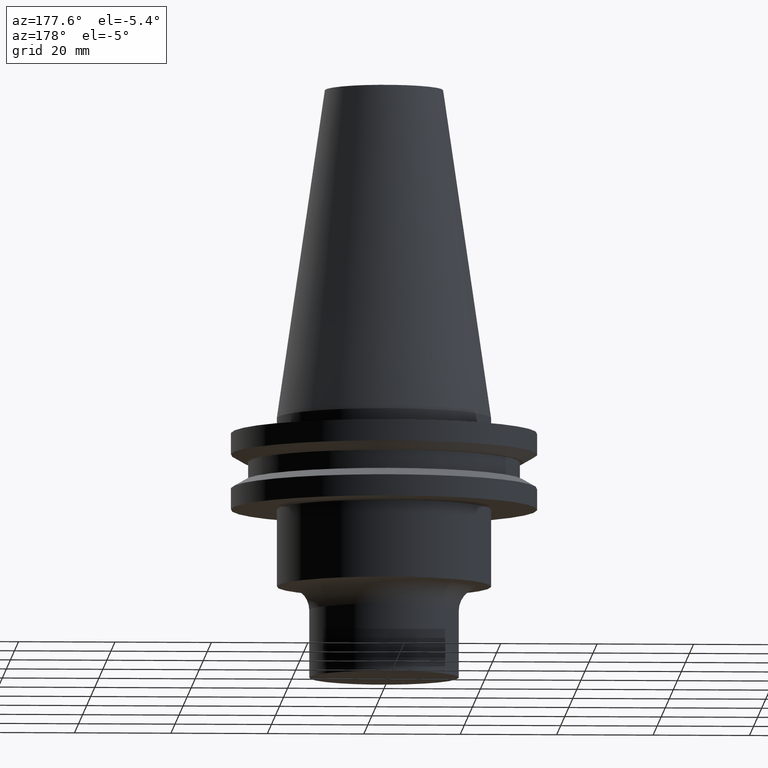
[diagram: clean part render]
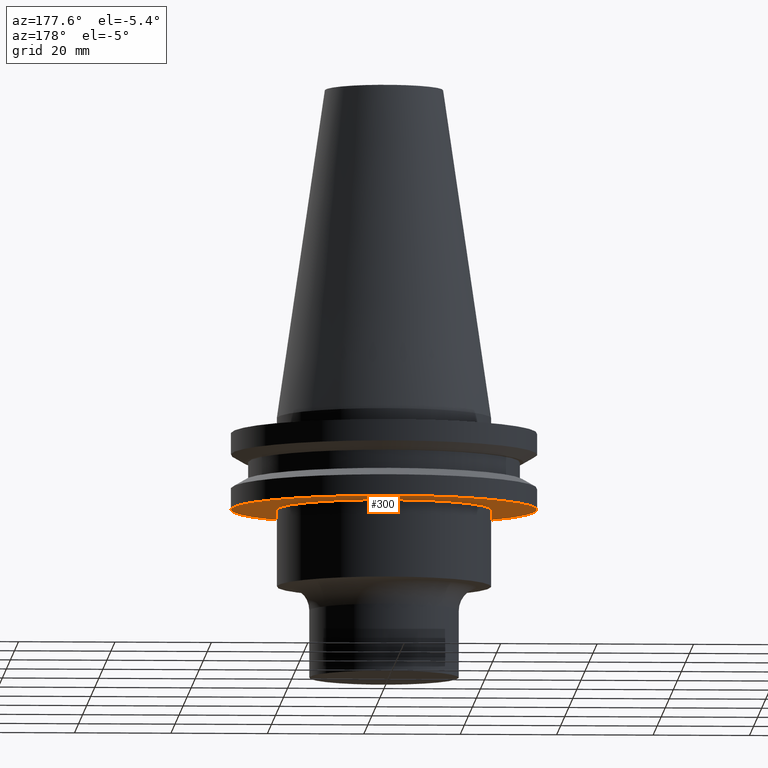
[diagram: same view with one face highlighted and labeled with its STEP entity id]
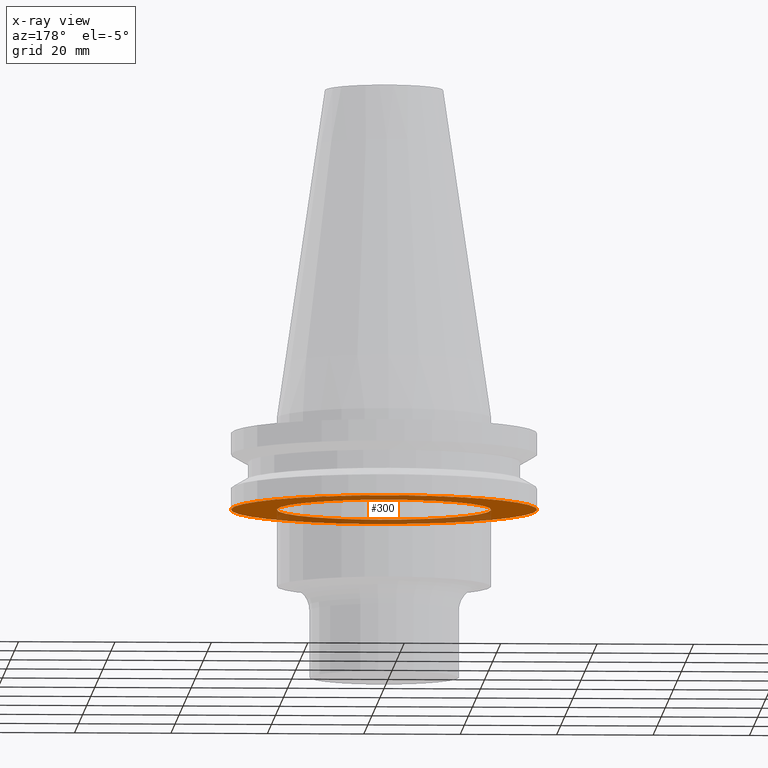
[diagram: x-ray of the same camera — body ghosted, the highlighted face saturated]
A machine part, auxiliary view. The second image highlights one B-rep face of the part: STEP entity #300.
The next image is the same camera in x-ray: the body ghosted, the highlighted face saturated — about 31% of this face is hidden behind the body in this view.
In plain terms, the highlighted planar face has unit normal (0, -0, 1).
Its self-contained STEP definition (entity closure, byte-faithful):
#4 = VERTEX_POINT ( 'NONE', #196 ) ;
#16 = AXIS2_PLACEMENT_3D ( 'NONE', #524, #252, #309 ) ;
#24 = EDGE_CURVE ( 'NONE', #658, #106, #265, .T. ) ;
#47 = CARTESIAN_POINT ( 'NONE',  ( 22.22500000000000142, 0.000000000000000000, -19.04999999999999716 ) ) ;
#58 = VERTEX_POINT ( 'NONE', #699 ) ;
#106 = VERTEX_POINT ( 'NONE', #279 ) ;
#111 = EDGE_LOOP ( 'NONE', ( #410, #475 ) ) ;
#184 = PLANE ( 'NONE',  #505 ) ;
#196 = CARTESIAN_POINT ( 'NONE',  ( 31.74999999999999289, 0.000000000000000000, -19.04999999999999716 ) ) ;
#209 = DIRECTION ( 'NONE',  ( -0.000000000000000000, -0.000000000000000000, 1.000000000000000000 ) ) ;
#252 = DIRECTION ( 'NONE',  ( -0.000000000000000000, -0.000000000000000000, 1.000000000000000000 ) ) ;
#261 = ORIENTED_EDGE ( 'NONE', *, *, #584, .T. ) ;
#265 = CIRCLE ( 'NONE', #456, 22.22500000000000142 ) ;
#274 = DIRECTION ( 'NONE',  ( 1.000000000000000000, 0.000000000000000000, 0.000000000000000000 ) ) ;
#279 = CARTESIAN_POINT ( 'NONE',  ( -22.22500000000000142, 2.721777511104992849E-15, -19.04999999999999716 ) ) ;
#300 = ADVANCED_FACE ( 'NONE', ( #613, #542 ), #184, .F. ) ;
#309 = DIRECTION ( 'NONE',  ( 1.000000000000000000, 0.000000000000000000, 0.000000000000000000 ) ) ;
#315 = AXIS2_PLACEMENT_3D ( 'NONE', #512, #567, #373 ) ;
#361 = DIRECTION ( 'NONE',  ( 0.000000000000000000, -0.000000000000000000, 1.000000000000000000 ) ) ;
#363 = AXIS2_PLACEMENT_3D ( 'NONE', #645, #464, #274 ) ;
#373 = DIRECTION ( 'NONE',  ( 1.000000000000000000, 0.000000000000000000, 0.000000000000000000 ) ) ;
#385 = DIRECTION ( 'NONE',  ( 1.000000000000000000, 0.000000000000000000, 0.000000000000000000 ) ) ;
#410 = ORIENTED_EDGE ( 'NONE', *, *, #704, .F. ) ;
#428 = CARTESIAN_POINT ( 'NONE',  ( 0.000000000000000000, 31.74999999999999289, -19.04999999999999716 ) ) ;
#456 = AXIS2_PLACEMENT_3D ( 'NONE', #686, #209, #385 ) ;
#464 = DIRECTION ( 'NONE',  ( -0.000000000000000000, -0.000000000000000000, 1.000000000000000000 ) ) ;
#475 = ORIENTED_EDGE ( 'NONE', *, *, #536, .F. ) ;
#505 = AXIS2_PLACEMENT_3D ( 'NONE', #428, #361, #718 ) ;
#512 = CARTESIAN_POINT ( 'NONE',  ( 0.000000000000000000, 0.000000000000000000, -19.04999999999999716 ) ) ;
#524 = CARTESIAN_POINT ( 'NONE',  ( 0.000000000000000000, 0.000000000000000000, -19.04999999999999716 ) ) ;
#536 = EDGE_CURVE ( 'NONE', #58, #4, #654, .T. ) ;
#542 = FACE_BOUND ( 'NONE', #577, .T. ) ;
#567 = DIRECTION ( 'NONE',  ( -0.000000000000000000, -0.000000000000000000, 1.000000000000000000 ) ) ;
#577 = EDGE_LOOP ( 'NONE', ( #601, #261 ) ) ;
#584 = EDGE_CURVE ( 'NONE', #106, #658, #743, .T. ) ;
#601 = ORIENTED_EDGE ( 'NONE', *, *, #24, .T. ) ;
#613 = FACE_OUTER_BOUND ( 'NONE', #111, .T. ) ;
#645 = CARTESIAN_POINT ( 'NONE',  ( 0.000000000000000000, 0.000000000000000000, -19.04999999999999716 ) ) ;
#654 = CIRCLE ( 'NONE', #315, 31.74999999999999289 ) ;
#658 = VERTEX_POINT ( 'NONE', #47 ) ;
#686 = CARTESIAN_POINT ( 'NONE',  ( 0.000000000000000000, 0.000000000000000000, -19.04999999999999716 ) ) ;
#699 = CARTESIAN_POINT ( 'NONE',  ( -31.74999999999999289, 3.888253587292845687E-15, -19.04999999999999716 ) ) ;
#704 = EDGE_CURVE ( 'NONE', #4, #58, #769, .T. ) ;
#718 = DIRECTION ( 'NONE',  ( 1.000000000000000000, 0.000000000000000000, 0.000000000000000000 ) ) ;
#743 = CIRCLE ( 'NONE', #363, 22.22500000000000142 ) ;
#769 = CIRCLE ( 'NONE', #16, 31.74999999999999289 ) ;